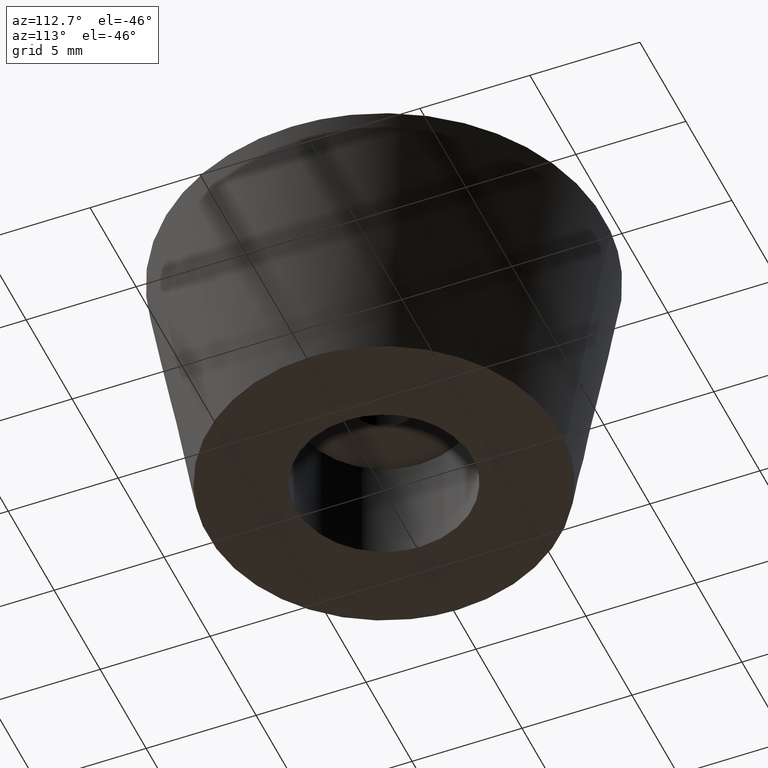
[diagram: clean part render]
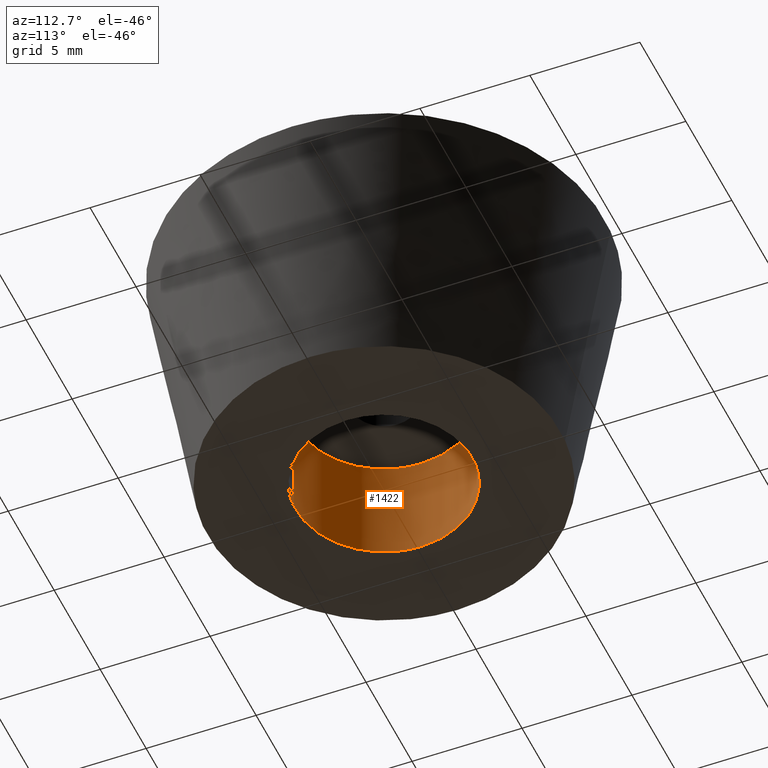
[diagram: same view with one face highlighted and labeled with its STEP entity id]
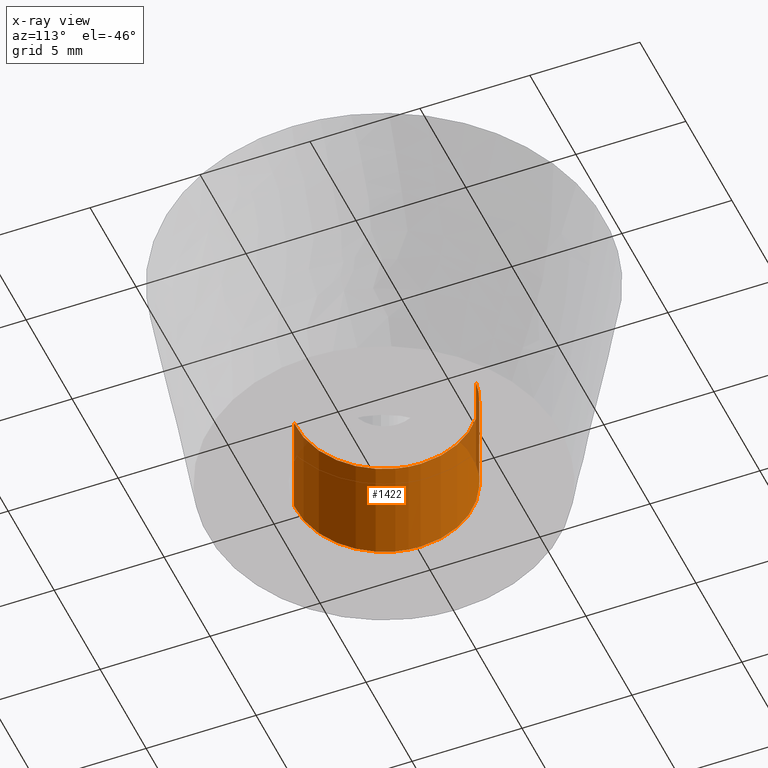
[diagram: x-ray of the same camera — body ghosted, the highlighted face saturated]
A machine part, auxiliary view. The second image highlights one B-rep face of the part: STEP entity #1422.
The next image is the same camera in x-ray: the body ghosted, the highlighted face saturated — about 5% of this face is hidden behind the body in this view.
In plain terms, the highlighted face is a freeform B-spline surface patch.
Its self-contained STEP definition (entity closure, byte-faithful):
#1255=CARTESIAN_POINT('',(-0.472129948118010,3.972038936370151,4.401114E-016));
#1256=VERTEX_POINT('',#1255);
#1274=CARTESIAN_POINT('',(0.244192892551057,-3.992539271093766,2.491063E-015));
#1275=VERTEX_POINT('',#1274);
#1289=CARTESIAN_POINT('',(0.244192908142875,-3.992539270140139,5.0));
#1290=VERTEX_POINT('',#1289);
#1291=CARTESIAN_POINT('',(0.244192908142875,-3.992539270140139,5.0));
#1292=CARTESIAN_POINT('',(0.244192892551057,-3.992539271093766,2.491063E-015));
#1293=QUASI_UNIFORM_CURVE('',1,(#1291,#1292),.UNSPECIFIED.,.F.,.U.);
#1294=EDGE_CURVE('',#1290,#1275,#1293,.T.);
#1311=CARTESIAN_POINT('',(-0.472130034368349,3.972038926118297,5.0));
#1312=VERTEX_POINT('',#1311);
#1328=CARTESIAN_POINT('',(-0.472130034368349,3.972038926118297,5.0));
#1329=CARTESIAN_POINT('',(-0.472129948118010,3.972038936370151,4.401114E-016));
#1330=QUASI_UNIFORM_CURVE('',1,(#1328,#1329),.UNSPECIFIED.,.F.,.U.);
#1331=EDGE_CURVE('',#1312,#1256,#1330,.T.);
#1336=CARTESIAN_POINT('',(0.299210877255858,-3.989174226994221,5.124999999999999));
#1337=CARTESIAN_POINT('',(0.271781248688852,-3.990851894947137,5.125000000000003));
#1338=CARTESIAN_POINT('',(-3.748345035548039,-4.236733351826894,5.125000000000001));
#1339=CARTESIAN_POINT('',(-3.992539193687467,-0.244194158139428,5.125000000000001));
#1340=CARTESIAN_POINT('',(-4.223144786930110,3.526173963358004,5.125000000000001));
#1341=CARTESIAN_POINT('',(-0.444051096566787,3.975376533520318,5.125000000000002));
#1342=CARTESIAN_POINT('',(-0.416116205152481,3.978697018813527,5.125000000000002));
#1343=CARTESIAN_POINT('',(0.299210877255858,-3.989174226994221,-0.128125000000000));
#1344=CARTESIAN_POINT('',(0.271781248688852,-3.990851894947137,-0.128125000000000));
#1345=CARTESIAN_POINT('',(-3.748345035548039,-4.236733351826894,-0.128125000000000));
#1346=CARTESIAN_POINT('',(-3.992539193687467,-0.244194158139428,-0.128125000000000));
#1347=CARTESIAN_POINT('',(-4.223144786930110,3.526173963358004,-0.128125000000000));
#1348=CARTESIAN_POINT('',(-0.444051096566787,3.975376533520318,-0.128125000000000));
#1349=CARTESIAN_POINT('',(-0.416116205152481,3.978697018813527,-0.128125000000000));
#1357=(BOUNDED_SURFACE()B_SPLINE_SURFACE(2,1,((#1336,#1343),(#1337,#1344),(#1338,#1345),(#1339,#1346),(#1340,#1347),(#1341,#1348),(#1342,#1349)),.UNSPECIFIED.,.F.,.F.,.U.)B_SPLINE_SURFACE_WITH_KNOTS((3,1,2,1,3),(2,2),(0.0,0.064947250903946,6.692364248873464,13.054684566924200,13.119641347048271),(0.0,5.253125000000002),.UNSPECIFIED.)GEOMETRIC_REPRESENTATION_ITEM()RATIONAL_B_SPLINE_SURFACE(((1.005740580191701,1.005740580191701),(1.002870290095850,1.002870290095850),(0.707106781186548,0.707106781186548),(1.0,1.0),(0.718822509939086,0.718822509939086),(0.980146855128439,0.980146855128439),(0.982787909461751,0.982787909461751)))REPRESENTATION_ITEM('')SURFACE());
#1358=CARTESIAN_POINT('',(-4.0,0.0,0.0));
#1359=VERTEX_POINT('',#1358);
#1360=CARTESIAN_POINT('',(-4.0,0.0,0.0));
#1361=CARTESIAN_POINT('',(-4.000000000000000,3.552704400324676,0.0));
#1362=CARTESIAN_POINT('',(-0.472129948118010,3.972038936370151,4.401114E-016));
#1370=(BOUNDED_CURVE()B_SPLINE_CURVE(2,(#1360,#1361,#1362),.UNSPECIFIED.,.F.,.U.)B_SPLINE_CURVE_WITH_KNOTS((3,3),(0.0,0.229562770949563),.UNSPECIFIED.)CURVE()GEOMETRIC_REPRESENTATION_ITEM()RATIONAL_B_SPLINE_CURVE((1.0,0.731050484387389,0.956027337171368))REPRESENTATION_ITEM(''));
#1371=EDGE_CURVE('',#1359,#1256,#1370,.T.);
#1372=ORIENTED_EDGE('',*,*,#1371,.T.);
#1373=ORIENTED_EDGE('',*,*,#1331,.F.);
#1374=CARTESIAN_POINT('',(-4.0,0.0,5.0));
#1375=VERTEX_POINT('',#1374);
#1376=CARTESIAN_POINT('',(-4.0,0.0,5.0));
#1377=CARTESIAN_POINT('',(-4.000000000000001,3.552704322636881,4.999999999999999));
#1378=CARTESIAN_POINT('',(-0.472130034368349,3.972038926118297,5.0));
#1386=(BOUNDED_CURVE()B_SPLINE_CURVE(2,(#1376,#1377,#1378),.UNSPECIFIED.,.F.,.U.)B_SPLINE_CURVE_WITH_KNOTS((3,3),(0.0,0.229562767279762),.UNSPECIFIED.)CURVE()GEOMETRIC_REPRESENTATION_ITEM()RATIONAL_B_SPLINE_CURVE((1.0,0.731050488686828,0.956027329978387))REPRESENTATION_ITEM(''));
#1387=EDGE_CURVE('',#1375,#1312,#1386,.T.);
#1388=ORIENTED_EDGE('',*,*,#1387,.F.);
#1389=CARTESIAN_POINT('',(0.244192908142875,-3.992539270140139,5.000000000000001));
#1390=CARTESIAN_POINT('',(0.122210426443661,-4.0,4.999999999999999));
#1391=CARTESIAN_POINT('',(0.0,-4.0,5.0));
#1392=CARTESIAN_POINT('',(-4.000000000000000,-4.000000000000000,5.000000000000001));
#1393=CARTESIAN_POINT('',(-4.0,0.0,5.0));
#1401=(BOUNDED_CURVE()B_SPLINE_CURVE(2,(#1389,#1390,#1391,#1392,#1393),.UNSPECIFIED.,.F.,.U.)B_SPLINE_CURVE_WITH_KNOTS((3,2,3),(0.739333016263454,0.750000000000000,1.0),.UNSPECIFIED.)CURVE()GEOMETRIC_REPRESENTATION_ITEM()RATIONAL_B_SPLINE_CURVE((0.976072157451557,0.987502851193490,1.0,0.707106781186548,1.0))REPRESENTATION_ITEM(''));
#1402=EDGE_CURVE('',#1290,#1375,#1401,.T.);
#1403=ORIENTED_EDGE('',*,*,#1402,.F.);
#1404=ORIENTED_EDGE('',*,*,#1294,.T.);
#1405=CARTESIAN_POINT('',(0.244192892551057,-3.992539271093766,2.491063E-015));
#1406=CARTESIAN_POINT('',(0.122210418625892,-4.000000000000001,0.0));
#1407=CARTESIAN_POINT('',(0.0,-4.0,0.0));
#1408=CARTESIAN_POINT('',(-4.000000000000000,-4.000000000000000,0.0));
#1409=CARTESIAN_POINT('',(-4.0,0.0,0.0));
#1417=(BOUNDED_CURVE()B_SPLINE_CURVE(2,(#1405,#1406,#1407,#1408,#1409),.UNSPECIFIED.,.F.,.U.)B_SPLINE_CURVE_WITH_KNOTS((3,2,3),(0.739333016937291,0.750000000000000,1.0),.UNSPECIFIED.)CURVE()GEOMETRIC_REPRESENTATION_ITEM()RATIONAL_B_SPLINE_CURVE((0.976072158895718,0.987502851982938,1.0,0.707106781186548,1.0))REPRESENTATION_ITEM(''));
#1418=EDGE_CURVE('',#1275,#1359,#1417,.T.);
#1419=ORIENTED_EDGE('',*,*,#1418,.T.);
#1420=EDGE_LOOP('',(#1372,#1373,#1388,#1403,#1404,#1419));
#1421=FACE_OUTER_BOUND('',#1420,.T.);
#1422=ADVANCED_FACE('',(#1421),#1357,.F.);